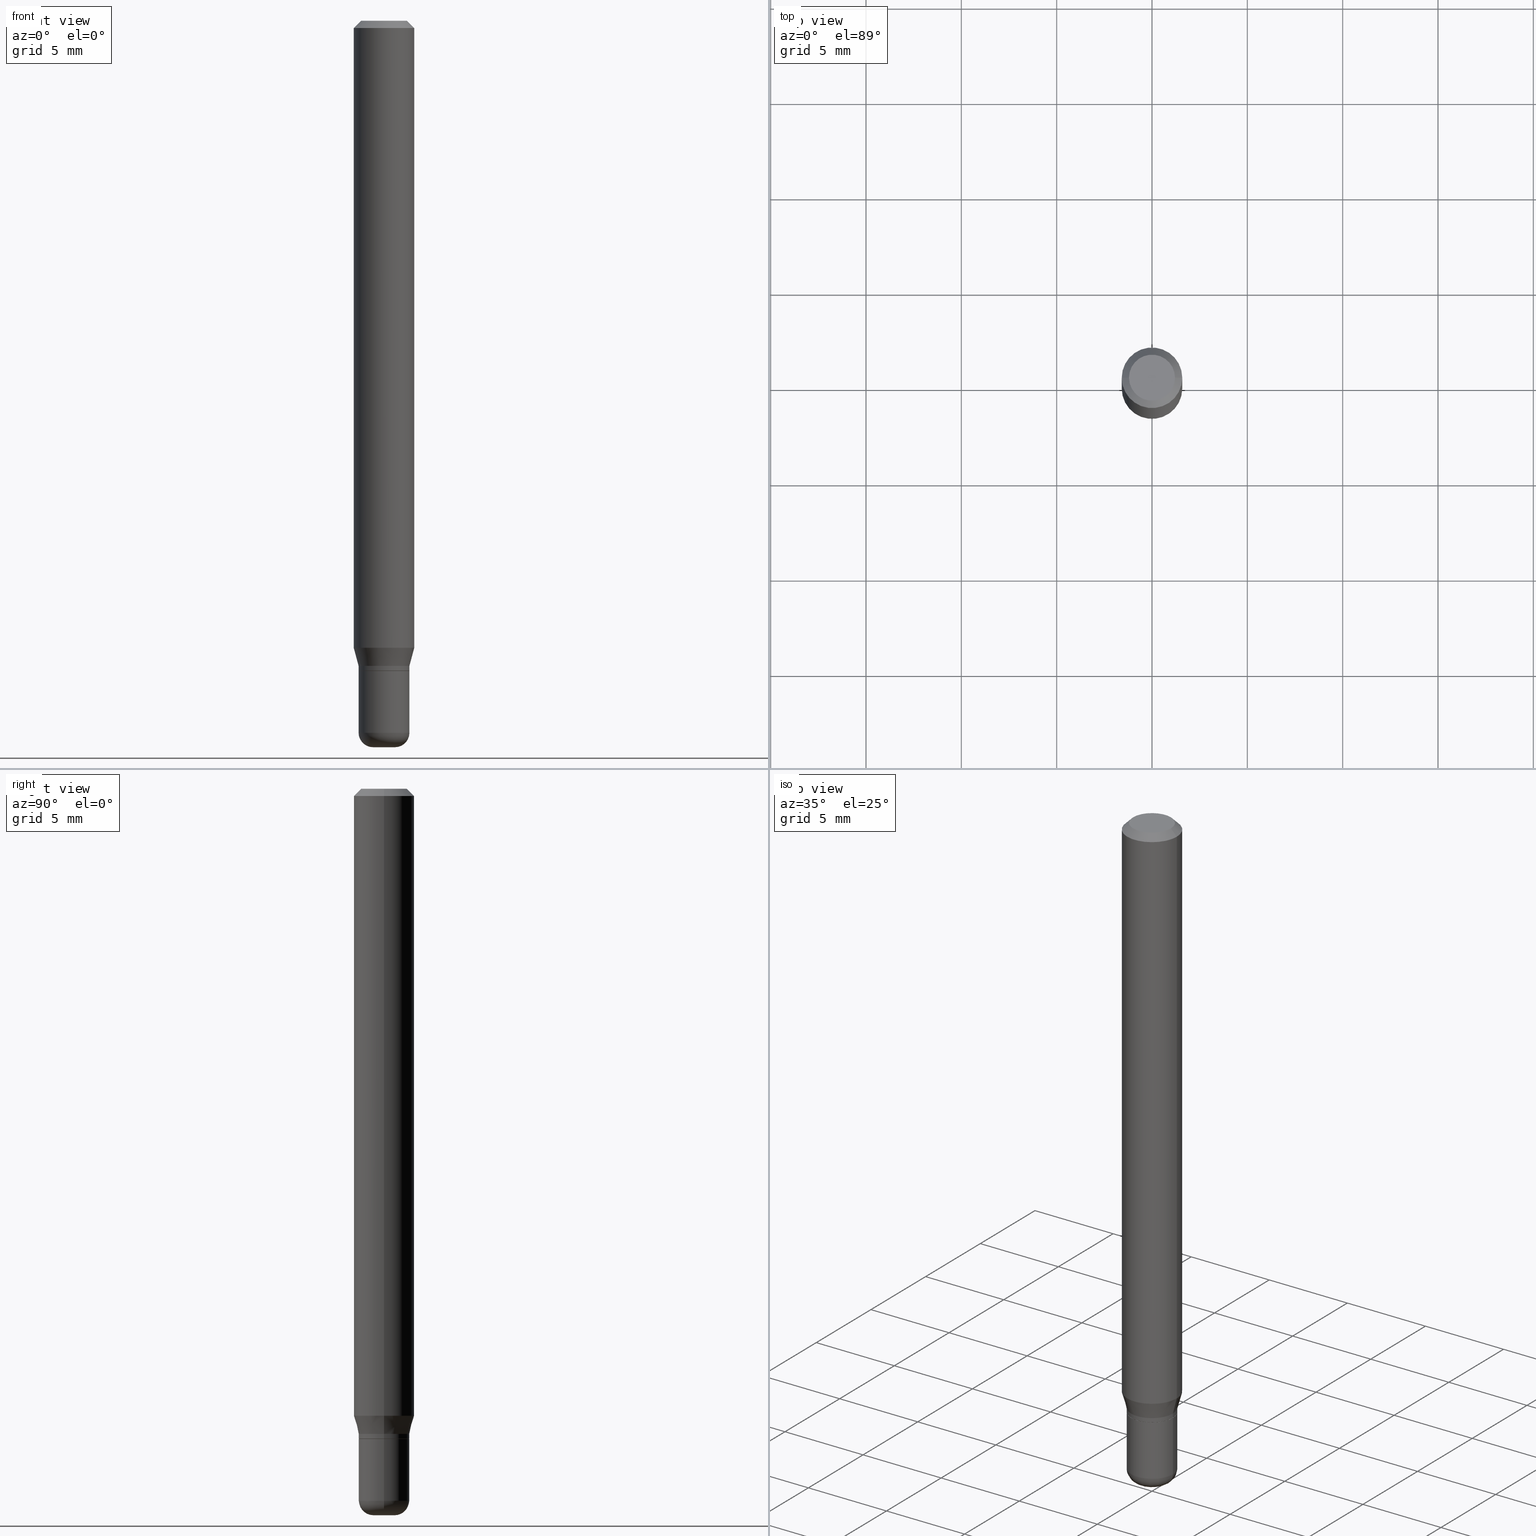
[diagram: canonical four-view strip — front | top / right | iso, engineering-drawing reading convention]
A machine part, canonical four-view strip (front | top / right | iso — engineering-drawing reading convention). The complete STEP part file that produces these views, byte-faithful:
ISO-10303-21;
HEADER;
FILE_DESCRIPTION (( 'STEP AP203' ),
    '1' );
FILE_NAME ('09094.STEP',
    '2024-02-29T22:03:59',
    ( '' ),
    ( '' ),
    'SwSTEP 2.0',
    'SolidWorks 2023',
    '' );
FILE_SCHEMA (( 'CONFIG_CONTROL_DESIGN' ));
ENDSEC;

DATA;
#1 = APPROVAL_STATUS ( 'not_yet_approved' ) ;
#2 = CONICAL_SURFACE ( 'NONE', #176, 0.05250000000000007438, 0.2617993877991501850 ) ;
#3 = ORIENTED_EDGE ( 'NONE', *, *, #203, .F. ) ;
#4 = EDGE_CURVE ( 'NONE', #404, #74, #418, .T. ) ;
#5 = DIRECTION ( 'NONE',  ( 7.105427357601001859E-15, 1.000000000000000000, -3.491481338843145583E-15 ) ) ;
#6 = PLANE ( 'NONE',  #167 ) ;
#7 = MECHANICAL_CONTEXT ( 'NONE', #196, 'mechanical' ) ;
#8 = DIRECTION ( 'NONE',  ( 1.000000000000000000, -6.982962677686262766E-15, 0.000000000000000000 ) ) ;
#9 = CIRCLE ( 'NONE', #438, 0.02250000000000000264 ) ;
#10 = PRODUCT_DEFINITION_FORMATION_WITH_SPECIFIED_SOURCE ( 'ANY', '', #503, .NOT_KNOWN. ) ;
#11 = CARTESIAN_POINT ( 'NONE',  ( -0.04750000000000000749, 3.578768372314221353E-16, 2.731847993664239060E-16 ) ) ;
#12 = DIRECTION ( 'NONE',  ( -2.445468806185136597E-29, 3.491481338843145583E-15, 1.000000000000000000 ) ) ;
#13 = DIRECTION ( 'NONE',  ( 1.000000000000000000, -6.982962677686258033E-15, 0.000000000000000000 ) ) ;
#14 = APPROVAL_STATUS ( 'not_yet_approved' ) ;
#15 = DIRECTION ( 'NONE',  ( 1.000000000000000000, -6.982962677686269866E-15, 0.000000000000000000 ) ) ;
#16 = EDGE_LOOP ( 'NONE', ( #268, #474 ) ) ;
#17 = DATE_AND_TIME ( #216, #194 ) ;
#18 = EDGE_CURVE ( 'NONE', #55, #305, #192, .T. ) ;
#19 = VECTOR ( 'NONE', #291, 39.37007874015748143 ) ;
#20 = AXIS2_PLACEMENT_3D ( 'NONE', #317, #233, #67 ) ;
#21 = ADVANCED_FACE ( 'NONE', ( #366 ), #115, .T. ) ;
#22 = ORIENTED_EDGE ( 'NONE', *, *, #4, .F. ) ;
#23 = COORDINATED_UNIVERSAL_TIME_OFFSET ( 5, 0, .BEHIND. ) ;
#24 = ORIENTED_EDGE ( 'NONE', *, *, #97, .T. ) ;
#25 = LINE ( 'NONE', #345, #211 ) ;
#26 = EDGE_CURVE ( 'NONE', #305, #404, #515, .T. ) ;
#27 = VERTEX_POINT ( 'NONE', #316 ) ;
#28 = CARTESIAN_POINT ( 'NONE',  ( 0.000000000000000000, 0.000000000000000000, 0.000000000000000000 ) ) ;
#29 = ORIENTED_EDGE ( 'NONE', *, *, #219, .T. ) ;
#30 = DIRECTION ( 'NONE',  ( 1.000000000000000000, -6.982962677686266711E-15, 4.876176775795936353E-29 ) ) ;
#31 = ORIENTED_EDGE ( 'NONE', *, *, #367, .F. ) ;
#32 = CARTESIAN_POINT ( 'NONE',  ( 0.05249999999999999806, -5.052173497306030121E-15, -1.342000000000000082 ) ) ;
#33 = ORIENTED_EDGE ( 'NONE', *, *, #26, .T. ) ;
#34 = CONICAL_SURFACE ( 'NONE', #99, 0.05200000000000005312, 0.7853981633972775267 ) ;
#35 = DIRECTION ( 'NONE',  ( -2.445468806185136597E-29, 3.491481338843145583E-15, 1.000000000000000000 ) ) ;
#36 = CC_DESIGN_PERSON_AND_ORGANIZATION_ASSIGNMENT ( #102, #334, ( #10 ) ) ;
#37 = DIRECTION ( 'NONE',  ( -2.445468806185136597E-29, 3.491481338843145583E-15, 1.000000000000000000 ) ) ;
#38 = CARTESIAN_POINT ( 'NONE',  ( -0.05250000000000005357, -4.310787279784026134E-15, -1.341499999999999915 ) ) ;
#39 = LINE ( 'NONE', #360, #221 ) ;
#40 = FACE_OUTER_BOUND ( 'NONE', #424, .T. ) ;
#41 = PRODUCT_DEFINITION_SHAPE ( 'NONE', 'NONE',  #91 ) ;
#42 = FACE_OUTER_BOUND ( 'NONE', #139, .T. ) ;
#43 = AXIS2_PLACEMENT_3D ( 'NONE', #425, #62, #398 ) ;
#44 = CARTESIAN_POINT ( 'NONE',  ( -0.02249999999999999570, -4.972605452553402518E-15, -1.470000000000000195 ) ) ;
#45 = VECTOR ( 'NONE', #313, 39.37007874015748143 ) ;
#46 = DIRECTION ( 'NONE',  ( 2.438088387897960049E-29, -3.491481338843145188E-15, -1.000000000000000000 ) ) ;
#47 = PLANE ( 'NONE',  #63 ) ;
#48 = CARTESIAN_POINT ( 'NONE',  ( -0.05249999999999999806, -4.535987826139409561E-15, -1.342000000000000082 ) ) ;
#49 = EDGE_CURVE ( 'NONE', #143, #193, #9, .T. ) ;
#50 = CARTESIAN_POINT ( 'NONE',  ( 3.668203209277632395E-31, -5.237222008264614861E-17, -0.01499999999999970281 ) ) ;
#51 =( NAMED_UNIT ( * ) PLANE_ANGLE_UNIT ( ) SI_UNIT ( $, .RADIAN. ) );
#52 = AXIS2_PLACEMENT_3D ( 'NONE', #154, #469, #395 ) ;
#53 = SECURITY_CLASSIFICATION ( '', '', #378 ) ;
#54 = CARTESIAN_POINT ( 'NONE',  ( -0.05250000000000005357, 3.730349362740529782E-16, -2.582440922383828464E-30 ) ) ;
#55 = VERTEX_POINT ( 'NONE', #157 ) ;
#56 = PERSON_AND_ORGANIZATION ( #141, #429 ) ;
#57 = DIRECTION ( 'NONE',  ( -2.445468806185136597E-29, 3.491481338843145583E-15, 1.000000000000000000 ) ) ;
#58 = VECTOR ( 'NONE', #410, 39.37007874015748143 ) ;
#59 = LOCAL_TIME ( 17, 3, 59.00000000000000000, #494 ) ;
#60 = EDGE_LOOP ( 'NONE', ( #24, #387, #340, #397 ) ) ;
#61 = ORIENTED_EDGE ( 'NONE', *, *, #18, .F. ) ;
#62 = DIRECTION ( 'NONE',  ( -2.438088387897960049E-29, 3.491481338843145188E-15, 1.000000000000000000 ) ) ;
#63 = AXIS2_PLACEMENT_3D ( 'NONE', #249, #483, #117 ) ;
#64 = EDGE_LOOP ( 'NONE', ( #95, #493, #234, #133 ) ) ;
#65 = AXIS2_PLACEMENT_3D ( 'NONE', #449, #485, #436 ) ;
#66 = LOCAL_TIME ( 17, 3, 59.00000000000000000, #98 ) ;
#67 = DIRECTION ( 'NONE',  ( 1.000000000000000000, -6.982962677686272233E-15, 4.883557194083115143E-29 ) ) ;
#68 = ORIENTED_EDGE ( 'NONE', *, *, #491, .F. ) ;
#69 = ADVANCED_FACE ( 'NONE', ( #478 ), #47, .F. ) ;
#70 = CARTESIAN_POINT ( 'NONE',  ( -0.05200000000000005312, -4.316085734132249325E-15, -1.342000000000000082 ) ) ;
#71 = ORIENTED_EDGE ( 'NONE', *, *, #26, .F. ) ;
#72 = CC_DESIGN_PERSON_AND_ORGANIZATION_ASSIGNMENT ( #164, #292, ( #503 ) ) ;
#73 = LINE ( 'NONE', #195, #202 ) ;
#74 = VERTEX_POINT ( 'NONE', #242 ) ;
#75 = AXIS2_PLACEMENT_3D ( 'NONE', #88, #138, #15 ) ;
#76 = AXIS2_PLACEMENT_3D ( 'NONE', #511, #152, #475 ) ;
#77 = DIRECTION ( 'NONE',  ( -2.445468806185136877E-29, 3.491481338843145188E-15, 1.000000000000000000 ) ) ;
#78 = DIRECTION ( 'NONE',  ( -2.445468806185136597E-29, 3.491481338843145583E-15, 1.000000000000000000 ) ) ;
#79 = DIRECTION ( 'NONE',  ( 1.000000000000000000, -6.982962677686262766E-15, 0.000000000000000000 ) ) ;
#80 = CARTESIAN_POINT ( 'NONE',  ( -0.06250000000000000000, 4.440892098500626162E-16, -3.074334431409316114E-30 ) ) ;
#81 = DIRECTION ( 'NONE',  ( -2.445468806185136597E-29, 3.491481338843145583E-15, 1.000000000000000000 ) ) ;
#82 = CARTESIAN_POINT ( 'NONE',  ( 3.668203209277632395E-31, -5.237222008264614861E-17, -0.01499999999999970281 ) ) ;
#83 = AXIS2_PLACEMENT_3D ( 'NONE', #82, #37, #208 ) ;
#84 = CIRCLE ( 'NONE', #247, 0.05250000000000005357 ) ;
#85 = CARTESIAN_POINT ( 'NONE',  ( 3.666055405785617499E-16, 0.05249999999999530736, -1.342000000000000304 ) ) ;
#86 = EDGE_CURVE ( 'NONE', #193, #348, #327, .T. ) ;
#87 = CARTESIAN_POINT ( 'NONE',  ( 3.281819137900453057E-29, -4.685567956727500961E-15, -1.342000000000000082 ) ) ;
#88 = CARTESIAN_POINT ( 'NONE',  ( 3.281819137900453057E-29, -4.685567956727500961E-15, -1.342000000000000082 ) ) ;
#89 = EDGE_CURVE ( 'NONE', #187, #230, #108, .T. ) ;
#90 = CYLINDRICAL_SURFACE ( 'NONE', #137, 0.06250000000000000000 ) ;
#91 = PRODUCT_DEFINITION ( 'UNKNOWN', '', #10, #250 ) ;
#92 = CARTESIAN_POINT ( 'NONE',  ( 3.594839145092150820E-29, -5.132477568099424807E-15, -1.470000000000000195 ) ) ;
#93 = VECTOR ( 'NONE', #77, 39.37007874015748143 ) ;
#94 = FACE_OUTER_BOUND ( 'NONE', #407, .T. ) ;
#95 = ORIENTED_EDGE ( 'NONE', *, *, #386, .F. ) ;
#96 = CARTESIAN_POINT ( 'NONE',  ( 0.02250000000000000264, -5.394338668512660598E-15, -1.500000000000000444 ) ) ;
#97 = EDGE_CURVE ( 'NONE', #263, #308, #228, .T. ) ;
#98 = COORDINATED_UNIVERSAL_TIME_OFFSET ( 5, 0, .BEHIND. ) ;
#99 = AXIS2_PLACEMENT_3D ( 'NONE', #147, #307, #315 ) ;
#100 = CALENDAR_DATE ( 2024, 29, 2 ) ;
#101 = ORIENTED_EDGE ( 'NONE', *, *, #311, .T. ) ;
#102 = PERSON_AND_ORGANIZATION ( #141, #429 ) ;
#103 = EDGE_CURVE ( 'NONE', #263, #468, #39, .T. ) ;
#104 = CARTESIAN_POINT ( 'NONE',  ( 0.05250000000000005357, -5.050427756636608617E-15, -1.341499999999999915 ) ) ;
#105 = ORIENTED_EDGE ( 'NONE', *, *, #399, .T. ) ;
#106 = LINE ( 'NONE', #435, #93 ) ;
#107 = ADVANCED_FACE ( 'NONE', ( #42 ), #6, .F. ) ;
#108 = CIRCLE ( 'NONE', #495, 0.05200000000000005312 ) ;
#109 = ORIENTED_EDGE ( 'NONE', *, *, #299, .F. ) ;
#110 = DIMENSIONAL_EXPONENTS ( 1.000000000000000000, 0.000000000000000000, 0.000000000000000000, 0.000000000000000000, 0.000000000000000000, 0.000000000000000000, 0.000000000000000000 ) ;
#111 = CARTESIAN_POINT ( 'NONE',  ( 0.05250000000000005357, -3.666055405785293573E-16, 2.559992807292869164E-30 ) ) ;
#112 = ADVANCED_FACE ( 'NONE', ( #200 ), #343, .T. ) ;
#113 = ORIENTED_EDGE ( 'NONE', *, *, #354, .F. ) ;
#114 = FACE_OUTER_BOUND ( 'NONE', #151, .T. ) ;
#115 = CYLINDRICAL_SURFACE ( 'NONE', #65, 0.05250000000000006051 ) ;
#116 = CARTESIAN_POINT ( 'NONE',  ( 3.257364449838602633E-29, -4.650653143339071678E-15, -1.332000000000000517 ) ) ;
#117 = DIRECTION ( 'NONE',  ( -1.000000000000000000, 6.982962677686265922E-15, -4.876176775795935793E-29 ) ) ;
#118 = AXIS2_PLACEMENT_3D ( 'NONE', #218, #227, #415 ) ;
#119 = EDGE_CURVE ( 'NONE', #468, #27, #481, .T. ) ;
#120 = ORIENTED_EDGE ( 'NONE', *, *, #261, .T. ) ;
#121 = APPROVAL_DATE_TIME ( #484, #431 ) ;
#122 = ADVANCED_FACE ( 'NONE', ( #174 ), #457, .F. ) ;
#123 = CARTESIAN_POINT ( 'NONE',  ( 3.668203209277706016E-29, -5.237222008264719754E-15, -1.500000000000000444 ) ) ;
#124 = DIRECTION ( 'NONE',  ( -2.445468806185136877E-29, 3.491481338843145188E-15, 1.000000000000000000 ) ) ;
#125 = VECTOR ( 'NONE', #437, 39.37007874015748143 ) ;
#126 = DIRECTION ( 'NONE',  ( 1.000000000000000000, -6.982962677686268288E-15, 0.000000000000000000 ) ) ;
#127 = TOROIDAL_SURFACE ( 'NONE', #20, 0.02249999999999999570, 0.03000000000000011685 ) ;
#128 = DIRECTION ( 'NONE',  ( -2.445468806185136597E-29, 3.491481338843145583E-15, 1.000000000000000000 ) ) ;
#129 = DIRECTION ( 'NONE',  ( 1.000000000000000000, -6.982962677686260400E-15, 0.000000000000000000 ) ) ;
#130 = DIRECTION ( 'NONE',  ( 2.445468806185136597E-29, -3.491481338843145583E-15, -1.000000000000000000 ) ) ;
#131 = LENGTH_MEASURE_WITH_UNIT ( LENGTH_MEASURE( 0.02539999999999999897 ), #403 );
#132 = DIRECTION ( 'NONE',  ( -2.445468806185136597E-29, 3.491481338843145583E-15, 1.000000000000000000 ) ) ;
#133 = ORIENTED_EDGE ( 'NONE', *, *, #456, .F. ) ;
#134 = APPROVAL_ROLE ( '' ) ;
#135 = CONICAL_SURFACE ( 'NONE', #270, 0.06250000000000000000, 0.7853981633974488341 ) ;
#136 = CC_DESIGN_APPROVAL ( #408, ( #53 ) ) ;
#137 = AXIS2_PLACEMENT_3D ( 'NONE', #288, #81, #486 ) ;
#138 = DIRECTION ( 'NONE',  ( -2.445468806185136597E-29, 3.491481338843145583E-15, 1.000000000000000000 ) ) ;
#139 = EDGE_LOOP ( 'NONE', ( #146, #356 ) ) ;
#140 = APPLICATION_CONTEXT ( 'configuration controlled 3d designs of mechanical parts and assemblies' ) ;
#141 = PERSON ( 'UNSPECIFIED', 'UNSPECIFIED', 'UNSPECIFIED', ('UNSPECIFIED'), ('UNSPECIFIED'), ('UNSPECIFIED') ) ;
#142 = AXIS2_PLACEMENT_3D ( 'NONE', #518, #277, #402 ) ;
#143 = VERTEX_POINT ( 'NONE', #335 ) ;
#144 = EDGE_CURVE ( 'NONE', #363, #465, #454, .T. ) ;
#145 = CARTESIAN_POINT ( 'NONE',  ( 3.594839145092150820E-29, -5.132477568099424807E-15, -1.470000000000000195 ) ) ;
#146 = ORIENTED_EDGE ( 'NONE', *, *, #491, .T. ) ;
#147 = CARTESIAN_POINT ( 'NONE',  ( 3.281819137900453057E-29, -4.685567956727500961E-15, -1.342000000000000082 ) ) ;
#148 = ORIENTED_EDGE ( 'NONE', *, *, #261, .F. ) ;
#149 = CARTESIAN_POINT ( 'NONE',  ( -0.06250000000000000000, -4.076260075986598044E-15, -1.294679491924312087 ) ) ;
#150 = CC_DESIGN_PERSON_AND_ORGANIZATION_ASSIGNMENT ( #220, #423, ( #10 ) ) ;
#151 = EDGE_LOOP ( 'NONE', ( #181, #101, #166, #476 ) ) ;
#152 = DIRECTION ( 'NONE',  ( -2.445468806185136597E-29, 3.491481338843145583E-15, 1.000000000000000000 ) ) ;
#153 = ORIENTED_EDGE ( 'NONE', *, *, #165, .F. ) ;
#154 = CARTESIAN_POINT ( 'NONE',  ( 3.257364449838602633E-29, -4.650653143339071678E-15, -1.332000000000000517 ) ) ;
#155 = DIRECTION ( 'NONE',  ( -2.445468806185136877E-29, 3.491481338843145188E-15, 1.000000000000000000 ) ) ;
#156 = CARTESIAN_POINT ( 'NONE',  ( 3.594839145092150820E-29, -5.132477568099424807E-15, -1.470000000000000195 ) ) ;
#157 = CARTESIAN_POINT ( 'NONE',  ( 0.06250000000000000000, -4.956784453192051541E-15, -1.294679491924312087 ) ) ;
#158 = AXIS2_PLACEMENT_3D ( 'NONE', #92, #254, #412 ) ;
#159 = COORDINATED_UNIVERSAL_TIME_OFFSET ( 5, 0, .BEHIND. ) ;
#160 = DIRECTION ( 'NONE',  ( -2.445468806185136597E-29, 3.491481338843145583E-15, 1.000000000000000000 ) ) ;
#161 = DIRECTION ( 'NONE',  ( 2.445468806185136597E-29, -3.491481338843145583E-15, -1.000000000000000000 ) ) ;
#162 = ADVANCED_FACE ( 'NONE', ( #257 ), #388, .T. ) ;
#163 = DIRECTION ( 'NONE',  ( -2.445468806185136597E-29, 3.491481338843145583E-15, 1.000000000000000000 ) ) ;
#164 = PERSON_AND_ORGANIZATION ( #141, #429 ) ;
#165 = EDGE_CURVE ( 'NONE', #190, #404, #304, .T. ) ;
#166 = ORIENTED_EDGE ( 'NONE', *, *, #354, .T. ) ;
#167 = AXIS2_PLACEMENT_3D ( 'NONE', #85, #46, #205 ) ;
#168 = CARTESIAN_POINT ( 'NONE',  ( 3.668203209277632395E-31, -5.237222008264614861E-17, -0.01499999999999970281 ) ) ;
#169 = CARTESIAN_POINT ( 'NONE',  ( 3.668203209277632395E-31, -5.237222008264614861E-17, -0.01499999999999970281 ) ) ;
#170 =( NAMED_UNIT ( * ) SI_UNIT ( $, .STERADIAN. ) SOLID_ANGLE_UNIT ( ) );
#171 = CARTESIAN_POINT ( 'NONE',  ( 0.05200000000000005312, -5.048682015967187903E-15, -1.342000000000000082 ) ) ;
#172 = ORIENTED_EDGE ( 'NONE', *, *, #260, .F. ) ;
#173 = DATE_AND_TIME ( #100, #66 ) ;
#174 = FACE_OUTER_BOUND ( 'NONE', #16, .T. ) ;
#175 = CIRCLE ( 'NONE', #353, 0.04750000000000000749 ) ;
#176 = AXIS2_PLACEMENT_3D ( 'NONE', #116, #473, #350 ) ;
#177 = EDGE_CURVE ( 'NONE', #27, #305, #329, .T. ) ;
#178 = ORIENTED_EDGE ( 'NONE', *, *, #119, .T. ) ;
#179 = APPROVAL_DATE_TIME ( #17, #408 ) ;
#180 = EDGE_CURVE ( 'NONE', #230, #187, #396, .T. ) ;
#181 = ORIENTED_EDGE ( 'NONE', *, *, #177, .F. ) ;
#182 = CARTESIAN_POINT ( 'NONE',  ( 0.06250000000000000000, -4.811533449433669144E-16, -0.01499999999999970281 ) ) ;
#183 = VECTOR ( 'NONE', #155, 39.37007874015748143 ) ;
#184 = AXIS2_PLACEMENT_3D ( 'NONE', #87, #455, #126 ) ;
#185 = ORIENTED_EDGE ( 'NONE', *, *, #349, .F. ) ;
#186 = DIRECTION ( 'NONE',  ( 1.000000000000000000, -6.982962677686266711E-15, 4.852736867747365086E-29 ) ) ;
#187 = VERTEX_POINT ( 'NONE', #171 ) ;
#188 = ADVANCED_FACE ( 'NONE', ( #496 ), #135, .T. ) ;
#189 = FACE_OUTER_BOUND ( 'NONE', #60, .T. ) ;
#190 = VERTEX_POINT ( 'NONE', #11 ) ;
#191 = DIRECTION ( 'NONE',  ( -2.445468806185136597E-29, 3.491481338843145583E-15, 1.000000000000000000 ) ) ;
#192 = CIRCLE ( 'NONE', #379, 0.06250000000000000000 ) ;
#193 = VERTEX_POINT ( 'NONE', #96 ) ;
#194 = LOCAL_TIME ( 17, 3, 59.00000000000000000, #23 ) ;
#195 = CARTESIAN_POINT ( 'NONE',  ( 0.05200000000000005312, -5.048682015967187903E-15, -1.342000000000000082 ) ) ;
#196 = APPLICATION_CONTEXT ( 'configuration controlled 3d designs of mechanical parts and assemblies' ) ;
#197 = DIRECTION ( 'NONE',  ( -2.445468806185136597E-29, 3.491481338843145583E-15, 1.000000000000000000 ) ) ;
#198 = CARTESIAN_POINT ( 'NONE',  ( 0.05250000000000010908, -5.499083108677954756E-15, -1.470000000000000195 ) ) ;
#199 = CARTESIAN_POINT ( 'NONE',  ( 3.280596403497360256E-29, -4.683822216058079457E-15, -1.341499999999999915 ) ) ;
#200 = FACE_OUTER_BOUND ( 'NONE', #64, .T. ) ;
#201 = CIRCLE ( 'NONE', #428, 0.06250000000000000000 ) ;
#202 = VECTOR ( 'NONE', #513, 39.37007874015748143 ) ;
#203 = EDGE_CURVE ( 'NONE', #265, #190, #175, .T. ) ;
#204 = DIRECTION ( 'NONE',  ( -1.000000000000000000, 6.982962677686266711E-15, 0.000000000000000000 ) ) ;
#205 = DIRECTION ( 'NONE',  ( -1.000000000000000000, 6.982962677686265922E-15, -4.876176775795935793E-29 ) ) ;
#206 = EDGE_CURVE ( 'NONE', #265, #74, #490, .T. ) ;
#207 = CARTESIAN_POINT ( 'NONE',  ( 3.280596403497360256E-29, -4.683822216058079457E-15, -1.341499999999999915 ) ) ;
#208 = DIRECTION ( 'NONE',  ( 1.000000000000000000, -6.982962677686266711E-15, 0.000000000000000000 ) ) ;
#209 =( CONVERSION_BASED_UNIT ( 'INCH', #131 ) LENGTH_UNIT ( ) NAMED_UNIT ( #110 ) );
#210 = DIRECTION ( 'NONE',  ( -1.000000000000000000, 6.982962677686266711E-15, 0.000000000000000000 ) ) ;
#211 = VECTOR ( 'NONE', #214, 39.37007874015748143 ) ;
#212 = FACE_OUTER_BOUND ( 'NONE', #512, .T. ) ;
#213 = CIRCLE ( 'NONE', #355, 0.06250000000000000000 ) ;
#214 = DIRECTION ( 'NONE',  ( -2.445468806185136877E-29, 3.491481338843145188E-15, 1.000000000000000000 ) ) ;
#215 = ADVANCED_FACE ( 'NONE', ( #492 ), #413, .T. ) ;
#216 = CALENDAR_DATE ( 2024, 29, 2 ) ;
#217 = MANIFOLD_SOLID_BREP ( 'Body-Move/Copy2[2]', #362 ) ;
#218 = CARTESIAN_POINT ( 'NONE',  ( 3.281819137900453057E-29, -4.685567956727500961E-15, -1.342000000000000082 ) ) ;
#219 = EDGE_CURVE ( 'NONE', #363, #348, #336, .T. ) ;
#220 = PERSON_AND_ORGANIZATION ( #141, #429 ) ;
#221 = VECTOR ( 'NONE', #124, 39.37007874015748143 ) ;
#222 = AXIS2_PLACEMENT_3D ( 'NONE', #411, #446, #248 ) ;
#223 = APPROVAL_ROLE ( '' ) ;
#224 = ORIENTED_EDGE ( 'NONE', *, *, #86, .T. ) ;
#225 = CARTESIAN_POINT ( 'NONE',  ( -0.05250000000000007438, -4.277618207065018355E-15, -1.332000000000000517 ) ) ;
#226 = ORIENTED_EDGE ( 'NONE', *, *, #97, .F. ) ;
#227 = DIRECTION ( 'NONE',  ( -2.438088387897960049E-29, 3.491481338843145188E-15, 1.000000000000000000 ) ) ;
#228 = CIRCLE ( 'NONE', #447, 0.05250000000000005357 ) ;
#229 = VECTOR ( 'NONE', #430, 39.37007874015748143 ) ;
#230 = VERTEX_POINT ( 'NONE', #385 ) ;
#231 = CARTESIAN_POINT ( 'NONE',  ( 0.000000000000000000, 0.000000000000000000, 0.000000000000000000 ) ) ;
#232 = ORIENTED_EDGE ( 'NONE', *, *, #206, .F. ) ;
#233 = DIRECTION ( 'NONE',  ( -2.445468806185136597E-29, 3.491481338843145583E-15, 1.000000000000000000 ) ) ;
#234 = ORIENTED_EDGE ( 'NONE', *, *, #331, .T. ) ;
#235 = EDGE_CURVE ( 'NONE', #308, #27, #25, .T. ) ;
#236 = CARTESIAN_POINT ( 'NONE',  ( -0.05250000000000009520, -4.535987826139408772E-15, -1.470000000000000195 ) ) ;
#237 = EDGE_LOOP ( 'NONE', ( #434, #383, #499, #432 ) ) ;
#238 = APPROVAL_PERSON_ORGANIZATION ( #255, #431, #414 ) ;
#239 = DIRECTION ( 'NONE',  ( -2.445468806185136597E-29, 3.491481338843145583E-15, 1.000000000000000000 ) ) ;
#240 = DIRECTION ( 'NONE',  ( 1.000000000000000000, -6.982962677686269866E-15, 0.000000000000000000 ) ) ;
#241 = CARTESIAN_POINT ( 'NONE',  ( -0.06250000000000000000, -1.842271543109590267E-15, -0.01499999999999970281 ) ) ;
#242 = CARTESIAN_POINT ( 'NONE',  ( 0.06250000000000000000, -4.888073874380378612E-16, -0.01499999999999970281 ) ) ;
#243 = PERSON_AND_ORGANIZATION_ROLE ( 'creator' ) ;
#244 = CARTESIAN_POINT ( 'NONE',  ( 3.166098311508526589E-29, -4.520349285836659871E-15, -1.294679491924312087 ) ) ;
#245 = CIRCLE ( 'NONE', #471, 0.04750000000000000749 ) ;
#246 = APPROVAL ( #14, 'UNSPECIFIED' ) ;
#247 = AXIS2_PLACEMENT_3D ( 'NONE', #207, #328, #129 ) ;
#248 = DIRECTION ( 'NONE',  ( 1.000000000000000000, 0.000000000000000000, 0.000000000000000000 ) ) ;
#249 = CARTESIAN_POINT ( 'NONE',  ( 3.316907271900976589E-16, 0.04750000000000000749, -2.925296391183627249E-17 ) ) ;
#250 = DESIGN_CONTEXT ( 'detailed design', #140, 'design' ) ;
#251 = CARTESIAN_POINT ( 'NONE',  ( 0.05250000000000007438, -5.017258683917600838E-15, -1.332000000000000517 ) ) ;
#252 = DIRECTION ( 'NONE',  ( -2.445468806185136597E-29, 3.491481338843145583E-15, 1.000000000000000000 ) ) ;
#253 = APPLICATION_PROTOCOL_DEFINITION ( 'international standard', 'config_control_design', 1994, #140 ) ;
#254 = DIRECTION ( 'NONE',  ( -2.445468806185136597E-29, 3.491481338843145583E-15, 1.000000000000000000 ) ) ;
#255 = PERSON_AND_ORGANIZATION ( #141, #429 ) ;
#256 = APPROVAL_PERSON_ORGANIZATION ( #56, #408, #134 ) ;
#257 = FACE_OUTER_BOUND ( 'NONE', #325, .T. ) ;
#258 = ORIENTED_EDGE ( 'NONE', *, *, #165, .T. ) ;
#259 = DIRECTION ( 'NONE',  ( -2.445468806185136597E-29, 3.491481338843145583E-15, 1.000000000000000000 ) ) ;
#260 = EDGE_CURVE ( 'NONE', #190, #265, #245, .T. ) ;
#261 = EDGE_CURVE ( 'NONE', #74, #404, #201, .T. ) ;
#262 = AXIS2_PLACEMENT_3D ( 'NONE', #269, #276, #480 ) ;
#263 = VERTEX_POINT ( 'NONE', #104 ) ;
#264 = CALENDAR_DATE ( 2024, 29, 2 ) ;
#265 = VERTEX_POINT ( 'NONE', #293 ) ;
#266 = APPROVAL_STATUS ( 'not_yet_approved' ) ;
#267 = PLANE ( 'NONE',  #43 ) ;
#268 = ORIENTED_EDGE ( 'NONE', *, *, #89, .F. ) ;
#269 = CARTESIAN_POINT ( 'NONE',  ( 3.257364449838602633E-29, -4.650653143339071678E-15, -1.332000000000000517 ) ) ;
#270 = AXIS2_PLACEMENT_3D ( 'NONE', #50, #130, #210 ) ;
#271 = CIRCLE ( 'NONE', #364, 0.05249999999999999806 ) ;
#272 = ORIENTED_EDGE ( 'NONE', *, *, #49, .F. ) ;
#273 = LINE ( 'NONE', #390, #45 ) ;
#274 = ORIENTED_EDGE ( 'NONE', *, *, #103, .T. ) ;
#275 = ADVANCED_FACE ( 'NONE', ( #94 ), #267, .F. ) ;
#276 = DIRECTION ( 'NONE',  ( -2.445468806185136597E-29, 3.491481338843145583E-15, 1.000000000000000000 ) ) ;
#277 = DIRECTION ( 'NONE',  ( -6.982962677686266711E-15, -1.000000000000000000, 3.491481338843145583E-15 ) ) ;
#278 = DIRECTION ( 'NONE',  ( 1.000000000000000000, -6.982962677686267499E-15, 0.000000000000000000 ) ) ;
#279 = CIRCLE ( 'NONE', #52, 0.05250000000000007438 ) ;
#280 = CARTESIAN_POINT ( 'NONE',  ( 3.281819137900453057E-29, -4.685567956727500961E-15, -1.342000000000000082 ) ) ;
#281 = AXIS2_PLACEMENT_3D ( 'NONE', #409, #12, #322 ) ;
#282 = CARTESIAN_POINT ( 'NONE',  ( 3.166098311508526589E-29, -4.520349285836659871E-15, -1.294679491924312087 ) ) ;
#283 = ORIENTED_EDGE ( 'NONE', *, *, #203, .T. ) ;
#284 = PERSON_AND_ORGANIZATION ( #141, #429 ) ;
#285 = EDGE_LOOP ( 'NONE', ( #444, #283 ) ) ;
#286 = ORIENTED_EDGE ( 'NONE', *, *, #456, .T. ) ;
#287 = CC_DESIGN_APPROVAL ( #246, ( #10 ) ) ;
#288 = CARTESIAN_POINT ( 'NONE',  ( 0.000000000000000000, 0.000000000000000000, 0.000000000000000000 ) ) ;
#289 = DIRECTION ( 'NONE',  ( -2.445468806185136877E-29, 3.491481338843145188E-15, 1.000000000000000000 ) ) ;
#290 = ADVANCED_FACE ( 'NONE', ( #114 ), #458, .T. ) ;
#291 = DIRECTION ( 'NONE',  ( 0.7071067811865479058, -7.319954787623257623E-15, -0.7071067811865471286 ) ) ;
#292 = PERSON_AND_ORGANIZATION_ROLE ( 'design_owner' ) ;
#293 = CARTESIAN_POINT ( 'NONE',  ( 0.04750000000000000749, -4.035134999187568762E-16, 2.731847993664288856E-16 ) ) ;
#294 = AXIS2_PLACEMENT_3D ( 'NONE', #374, #259, #13 ) ;
#295 = DATE_TIME_ROLE ( 'classification_date' ) ;
#296 =( GEOMETRIC_REPRESENTATION_CONTEXT ( 3 ) GLOBAL_UNCERTAINTY_ASSIGNED_CONTEXT ( ( #451 ) ) GLOBAL_UNIT_ASSIGNED_CONTEXT ( ( #209, #51, #170 ) ) REPRESENTATION_CONTEXT ( 'NONE', 'WORKASPACE' ) );
#297 = ADVANCED_FACE ( 'NONE', ( #507 ), #34, .T. ) ;
#298 = DIRECTION ( 'NONE',  ( 1.000000000000000000, -6.982962677686266711E-15, 4.876176775795935793E-29 ) ) ;
#299 = EDGE_CURVE ( 'NONE', #348, #391, #357, .T. ) ;
#300 = ORIENTED_EDGE ( 'NONE', *, *, #331, .F. ) ;
#301 = VECTOR ( 'NONE', #461, 39.37007874015748143 ) ;
#302 = ORIENTED_EDGE ( 'NONE', *, *, #18, .T. ) ;
#303 = PERSON_AND_ORGANIZATION_ROLE ( 'classification_officer' ) ;
#304 = LINE ( 'NONE', #376, #301 ) ;
#305 = VERTEX_POINT ( 'NONE', #149 ) ;
#306 = EDGE_CURVE ( 'NONE', #348, #363, #372, .T. ) ;
#307 = DIRECTION ( 'NONE',  ( -2.445468806185136597E-29, 3.491481338843145583E-15, 1.000000000000000000 ) ) ;
#308 = VERTEX_POINT ( 'NONE', #38 ) ;
#309 = FACE_OUTER_BOUND ( 'NONE', #504, .T. ) ;
#310 = AXIS2_PLACEMENT_3D ( 'NONE', #44, #5, #324 ) ;
#311 = EDGE_CURVE ( 'NONE', #27, #468, #279, .T. ) ;
#312 = ORIENTED_EDGE ( 'NONE', *, *, #330, .F. ) ;
#313 = DIRECTION ( 'NONE',  ( 0.2588190451025214611, 1.565188264969620982E-15, 0.9659258262890679791 ) ) ;
#314 = EDGE_LOOP ( 'NONE', ( #232, #172, #258, #377 ) ) ;
#315 = DIRECTION ( 'NONE',  ( 1.000000000000000000, -6.982962677686269866E-15, 0.000000000000000000 ) ) ;
#316 = CARTESIAN_POINT ( 'NONE',  ( -0.05250000000000007438, -4.176939141525808200E-15, -1.332000000000000517 ) ) ;
#317 = CARTESIAN_POINT ( 'NONE',  ( 3.594839145092150820E-29, -5.132477568099424807E-15, -1.470000000000000195 ) ) ;
#318 = CLOSED_SHELL ( 'NONE', ( #392, #450, #107, #405, #215, #275 ) ) ;
#319 = ORIENTED_EDGE ( 'NONE', *, *, #445, .F. ) ;
#320 = CALENDAR_DATE ( 2024, 29, 2 ) ;
#321 = CARTESIAN_POINT ( 'NONE',  ( 3.281819137900453057E-29, -4.685567956727500961E-15, -1.342000000000000082 ) ) ;
#322 = DIRECTION ( 'NONE',  ( 1.000000000000000000, -6.982962677686266711E-15, 4.876176775795936353E-29 ) ) ;
#323 = ORIENTED_EDGE ( 'NONE', *, *, #219, .F. ) ;
#324 = DIRECTION ( 'NONE',  ( -1.000000000000000000, 7.105427357600997126E-15, 0.000000000000000000 ) ) ;
#325 = EDGE_LOOP ( 'NONE', ( #71, #105, #389, #22 ) ) ;
#326 = ADVANCED_FACE ( 'NONE', ( #309 ), #2, .T. ) ;
#327 = CIRCLE ( 'NONE', #142, 0.03000000000000010991 ) ;
#328 = DIRECTION ( 'NONE',  ( -2.445468806185136597E-29, 3.491481338843145583E-15, 1.000000000000000000 ) ) ;
#329 = LINE ( 'NONE', #225, #58 ) ;
#330 = EDGE_CURVE ( 'NONE', #55, #74, #106, .T. ) ;
#331 = EDGE_CURVE ( 'NONE', #187, #263, #73, .T. ) ;
#332 = DIRECTION ( 'NONE',  ( 1.000000000000000000, -6.982962677686266711E-15, 4.852736867747365086E-29 ) ) ;
#333 = ORIENTED_EDGE ( 'NONE', *, *, #144, .T. ) ;
#334 = PERSON_AND_ORGANIZATION_ROLE ( 'design_supplier' ) ;
#335 = CARTESIAN_POINT ( 'NONE',  ( -0.02250000000000000264, -4.918396262272034080E-15, -1.500000000000000444 ) ) ;
#336 = CIRCLE ( 'NONE', #488, 0.05250000000000010908 ) ;
#337 = CIRCLE ( 'NONE', #448, 0.02250000000000000264 ) ;
#338 = DATE_AND_TIME ( #501, #59 ) ;
#339 = CC_DESIGN_PERSON_AND_ORGANIZATION_ASSIGNMENT ( #284, #243, ( #91 ) ) ;
#340 = ORIENTED_EDGE ( 'NONE', *, *, #119, .F. ) ;
#341 = ORIENTED_EDGE ( 'NONE', *, *, #311, .F. ) ;
#342 = PERSON_AND_ORGANIZATION ( #141, #429 ) ;
#343 = CONICAL_SURFACE ( 'NONE', #509, 0.05200000000000005312, 0.7853981633972775267 ) ;
#344 = CC_DESIGN_SECURITY_CLASSIFICATION ( #53, ( #10 ) ) ;
#345 = CARTESIAN_POINT ( 'NONE',  ( -0.05250000000000006051, 3.730349362740530275E-16, -2.582440922383828814E-30 ) ) ;
#346 = EDGE_LOOP ( 'NONE', ( #302, #33, #148, #312 ) ) ;
#347 = CARTESIAN_POINT ( 'NONE',  ( 3.281819137900453057E-29, -4.685567956727500961E-15, -1.342000000000000082 ) ) ;
#348 = VERTEX_POINT ( 'NONE', #198 ) ;
#349 = EDGE_CURVE ( 'NONE', #465, #391, #271, .T. ) ;
#350 = DIRECTION ( 'NONE',  ( 1.000000000000000000, -6.982962677686258033E-15, 0.000000000000000000 ) ) ;
#351 = EDGE_LOOP ( 'NONE', ( #417, #427, #226, #300 ) ) ;
#352 = CYLINDRICAL_SURFACE ( 'NONE', #76, 0.05250000000000006051 ) ;
#353 = AXIS2_PLACEMENT_3D ( 'NONE', #370, #416, #186 ) ;
#354 = EDGE_CURVE ( 'NONE', #468, #55, #273, .T. ) ;
#355 = AXIS2_PLACEMENT_3D ( 'NONE', #282, #191, #79 ) ;
#356 = ORIENTED_EDGE ( 'NONE', *, *, #349, .T. ) ;
#357 = LINE ( 'NONE', #111, #125 ) ;
#358 = ORIENTED_EDGE ( 'NONE', *, *, #144, .F. ) ;
#359 = DIRECTION ( 'NONE',  ( 1.000000000000000000, -6.982962677686268288E-15, 0.000000000000000000 ) ) ;
#360 = CARTESIAN_POINT ( 'NONE',  ( 0.05250000000000006051, -3.666055405785294559E-16, 2.559992807292869514E-30 ) ) ;
#361 = AXIS2_PLACEMENT_3D ( 'NONE', #28, #252, #298 ) ;
#362 = CLOSED_SHELL ( 'NONE', ( #421, #297, #426, #479, #326, #290, #162, #188, #69, #122, #112, #21 ) ) ;
#363 = VERTEX_POINT ( 'NONE', #236 ) ;
#364 = AXIS2_PLACEMENT_3D ( 'NONE', #347, #401, #359 ) ;
#365 = FACE_OUTER_BOUND ( 'NONE', #487, .T. ) ;
#366 = FACE_OUTER_BOUND ( 'NONE', #498, .T. ) ;
#367 = EDGE_CURVE ( 'NONE', #193, #143, #337, .T. ) ;
#368 = ORIENTED_EDGE ( 'NONE', *, *, #206, .T. ) ;
#369 = CC_DESIGN_DATE_AND_TIME_ASSIGNMENT ( #338, #295, ( #53 ) ) ;
#370 = CARTESIAN_POINT ( 'NONE',  ( -6.680649051745406845E-45, 9.538196290434862081E-31, 2.731847993664263218E-16 ) ) ;
#371 = CC_DESIGN_PERSON_AND_ORGANIZATION_ASSIGNMENT ( #342, #303, ( #53 ) ) ;
#372 = CIRCLE ( 'NONE', #500, 0.05250000000000010908 ) ;
#373 = CYLINDRICAL_SURFACE ( 'NONE', #281, 0.05250000000000005357 ) ;
#374 = CARTESIAN_POINT ( 'NONE',  ( 3.257364449838602633E-29, -4.650653143339071678E-15, -1.332000000000000517 ) ) ;
#375 = ORIENTED_EDGE ( 'NONE', *, *, #299, .T. ) ;
#376 = CARTESIAN_POINT ( 'NONE',  ( -0.06250000000000000000, 3.840629472727455270E-16, -0.01499999999999970281 ) ) ;
#377 = ORIENTED_EDGE ( 'NONE', *, *, #4, .T. ) ;
#378 = SECURITY_CLASSIFICATION_LEVEL ( 'unclassified' ) ;
#379 = AXIS2_PLACEMENT_3D ( 'NONE', #244, #197, #8 ) ;
#380 = CIRCLE ( 'NONE', #310, 0.03000000000000010991 ) ;
#381 = MANIFOLD_SOLID_BREP ( 'Body-Move/Copy2[1]', #318 ) ;
#382 = COORDINATED_UNIVERSAL_TIME_OFFSET ( 5, 0, .BEHIND. ) ;
#383 = ORIENTED_EDGE ( 'NONE', *, *, #445, .T. ) ;
#384 = SHAPE_DEFINITION_REPRESENTATION ( #41, #439 ) ;
#385 = CARTESIAN_POINT ( 'NONE',  ( -0.05200000000000005312, -4.313436506958137335E-15, -1.342000000000000082 ) ) ;
#386 = EDGE_CURVE ( 'NONE', #230, #308, #442, .T. ) ;
#387 = ORIENTED_EDGE ( 'NONE', *, *, #235, .T. ) ;
#388 = CYLINDRICAL_SURFACE ( 'NONE', #361, 0.06250000000000000000 ) ;
#389 = ORIENTED_EDGE ( 'NONE', *, *, #330, .T. ) ;
#390 = CARTESIAN_POINT ( 'NONE',  ( 0.05250000000000007438, -5.017258683917600838E-15, -1.332000000000000517 ) ) ;
#391 = VERTEX_POINT ( 'NONE', #32 ) ;
#392 = ADVANCED_FACE ( 'NONE', ( #517 ), #127, .T. ) ;
#393 = DIRECTION ( 'NONE',  ( -2.445468806185136597E-29, 3.491481338843145583E-15, 1.000000000000000000 ) ) ;
#394 = EDGE_LOOP ( 'NONE', ( #319, #506, #224, #323 ) ) ;
#395 = DIRECTION ( 'NONE',  ( 1.000000000000000000, -6.982962677686258033E-15, 0.000000000000000000 ) ) ;
#396 = CIRCLE ( 'NONE', #75, 0.05200000000000005312 ) ;
#397 = ORIENTED_EDGE ( 'NONE', *, *, #103, .F. ) ;
#398 = DIRECTION ( 'NONE',  ( 1.000000000000000000, -6.982962677686265922E-15, 4.876176775795935793E-29 ) ) ;
#399 = EDGE_CURVE ( 'NONE', #305, #55, #213, .T. ) ;
#400 = DIRECTION ( 'NONE',  ( 1.000000000000000000, -6.982962677686260400E-15, 0.000000000000000000 ) ) ;
#401 = DIRECTION ( 'NONE',  ( -2.445468806185136597E-29, 3.491481338843145583E-15, 1.000000000000000000 ) ) ;
#402 = DIRECTION ( 'NONE',  ( 1.000000000000000000, -6.982962677686274599E-15, 0.000000000000000000 ) ) ;
#403 =( LENGTH_UNIT ( ) NAMED_UNIT ( * ) SI_UNIT ( $, .METRE. ) );
#404 = VERTEX_POINT ( 'NONE', #241 ) ;
#405 = ADVANCED_FACE ( 'NONE', ( #40 ), #505, .T. ) ;
#406 = APPLICATION_PROTOCOL_DEFINITION ( 'international standard', 'config_control_design', 1994, #196 ) ;
#407 = EDGE_LOOP ( 'NONE', ( #31, #272 ) ) ;
#408 = APPROVAL ( #266, 'UNSPECIFIED' ) ;
#409 = CARTESIAN_POINT ( 'NONE',  ( 0.000000000000000000, 0.000000000000000000, 0.000000000000000000 ) ) ;
#410 = DIRECTION ( 'NONE',  ( -0.2588190451025214611, 5.211531920934550253E-15, 0.9659258262890679791 ) ) ;
#411 = CARTESIAN_POINT ( 'NONE',  ( 0.000000000000000000, 0.000000000000000000, 0.000000000000000000 ) ) ;
#412 = DIRECTION ( 'NONE',  ( 1.000000000000000000, -6.982962677686272233E-15, 4.883557194083115143E-29 ) ) ;
#413 = TOROIDAL_SURFACE ( 'NONE', #158, 0.02249999999999999570, 0.03000000000000011685 ) ;
#414 = APPROVAL_ROLE ( '' ) ;
#415 = DIRECTION ( 'NONE',  ( 1.000000000000000000, -6.982962677686265922E-15, 4.876176775795935793E-29 ) ) ;
#416 = DIRECTION ( 'NONE',  ( -2.445468806185136597E-29, 3.491481338843145583E-15, 1.000000000000000000 ) ) ;
#417 = ORIENTED_EDGE ( 'NONE', *, *, #89, .T. ) ;
#418 = CIRCLE ( 'NONE', #83, 0.06250000000000000000 ) ;
#419 = LOCAL_TIME ( 17, 3, 59.00000000000000000, #382 ) ;
#420 = PERSON_AND_ORGANIZATION ( #141, #429 ) ;
#421 = ADVANCED_FACE ( 'NONE', ( #189 ), #352, .T. ) ;
#422 = ORIENTED_EDGE ( 'NONE', *, *, #177, .T. ) ;
#423 = PERSON_AND_ORGANIZATION_ROLE ( 'creator' ) ;
#424 = EDGE_LOOP ( 'NONE', ( #358, #29, #375, #185 ) ) ;
#425 = CARTESIAN_POINT ( 'NONE',  ( 3.582686580359767159E-29, -5.359686688179454114E-15, -1.500000000000000444 ) ) ;
#426 = ADVANCED_FACE ( 'NONE', ( #365 ), #464, .T. ) ;
#427 = ORIENTED_EDGE ( 'NONE', *, *, #386, .T. ) ;
#428 = AXIS2_PLACEMENT_3D ( 'NONE', #169, #132, #502 ) ;
#429 = ORGANIZATION ( 'UNSPECIFIED', 'UNSPECIFIED', '' ) ;
#430 = DIRECTION ( 'NONE',  ( -0.7071067811864267805, 7.493145998869918709E-15, 0.7071067811866682540 ) ) ;
#431 = APPROVAL ( #1, 'UNSPECIFIED' ) ;
#432 = ORIENTED_EDGE ( 'NONE', *, *, #86, .F. ) ;
#433 = CARTESIAN_POINT ( 'NONE',  ( 3.668203209277706016E-29, -5.237222008264719754E-15, -1.500000000000000444 ) ) ;
#434 = ORIENTED_EDGE ( 'NONE', *, *, #367, .T. ) ;
#435 = CARTESIAN_POINT ( 'NONE',  ( 0.06250000000000000000, -4.364351673553916694E-16, 3.047610484872459871E-30 ) ) ;
#436 = DIRECTION ( 'NONE',  ( 1.000000000000000000, -6.982962677686267499E-15, 4.876176775795936353E-29 ) ) ;
#437 = DIRECTION ( 'NONE',  ( -2.445468806185136877E-29, 3.491481338843145188E-15, 1.000000000000000000 ) ) ;
#438 = AXIS2_PLACEMENT_3D ( 'NONE', #123, #443, #441 ) ;
#439 = ADVANCED_BREP_SHAPE_REPRESENTATION ( '09094', ( #381, #217, #222 ), #296 ) ;
#440 = CIRCLE ( 'NONE', #184, 0.05249999999999999806 ) ;
#441 = DIRECTION ( 'NONE',  ( 1.000000000000000000, -6.982962677686267499E-15, 0.000000000000000000 ) ) ;
#442 = LINE ( 'NONE', #70, #229 ) ;
#443 = DIRECTION ( 'NONE',  ( -2.445468806185136597E-29, 3.491481338843145583E-15, 1.000000000000000000 ) ) ;
#444 = ORIENTED_EDGE ( 'NONE', *, *, #260, .T. ) ;
#445 = EDGE_CURVE ( 'NONE', #143, #363, #380, .T. ) ;
#446 = DIRECTION ( 'NONE',  ( 0.000000000000000000, 0.000000000000000000, 1.000000000000000000 ) ) ;
#447 = AXIS2_PLACEMENT_3D ( 'NONE', #199, #160, #400 ) ;
#448 = AXIS2_PLACEMENT_3D ( 'NONE', #433, #393, #278 ) ;
#449 = CARTESIAN_POINT ( 'NONE',  ( 0.000000000000000000, 0.000000000000000000, 0.000000000000000000 ) ) ;
#450 = ADVANCED_FACE ( 'NONE', ( #212 ), #373, .T. ) ;
#451 = UNCERTAINTY_MEASURE_WITH_UNIT (LENGTH_MEASURE( 1.000000000000000082E-05 ), #209, 'distance_accuracy_value', 'NONE');
#452 = FACE_OUTER_BOUND ( 'NONE', #346, .T. ) ;
#453 = DIRECTION ( 'NONE',  ( 1.000000000000000000, -6.982962677686269866E-15, 0.000000000000000000 ) ) ;
#454 = LINE ( 'NONE', #54, #463 ) ;
#455 = DIRECTION ( 'NONE',  ( -2.445468806185136597E-29, 3.491481338843145583E-15, 1.000000000000000000 ) ) ;
#456 = EDGE_CURVE ( 'NONE', #308, #263, #84, .T. ) ;
#457 = PLANE ( 'NONE',  #118 ) ;
#458 = CONICAL_SURFACE ( 'NONE', #262, 0.05250000000000007438, 0.2617993877991501850 ) ;
#459 = AXIS2_PLACEMENT_3D ( 'NONE', #231, #35, #30 ) ;
#460 = APPROVAL_DATE_TIME ( #173, #246 ) ;
#461 = DIRECTION ( 'NONE',  ( -0.7071067811865479058, 2.468850131082261005E-15, -0.7071067811865471286 ) ) ;
#462 = DATE_TIME_ROLE ( 'creation_date' ) ;
#463 = VECTOR ( 'NONE', #289, 39.37007874015748143 ) ;
#464 = CONICAL_SURFACE ( 'NONE', #472, 0.06250000000000000000, 0.7853981633974488341 ) ;
#465 = VERTEX_POINT ( 'NONE', #48 ) ;
#466 = DATE_AND_TIME ( #264, #419 ) ;
#467 = DIRECTION ( 'NONE',  ( 1.000000000000000000, -6.982962677686272233E-15, 0.000000000000000000 ) ) ;
#468 = VERTEX_POINT ( 'NONE', #251 ) ;
#469 = DIRECTION ( 'NONE',  ( -2.445468806185136597E-29, 3.491481338843145583E-15, 1.000000000000000000 ) ) ;
#470 = ORIENTED_EDGE ( 'NONE', *, *, #306, .T. ) ;
#471 = AXIS2_PLACEMENT_3D ( 'NONE', #489, #128, #332 ) ;
#472 = AXIS2_PLACEMENT_3D ( 'NONE', #168, #161, #204 ) ;
#473 = DIRECTION ( 'NONE',  ( -2.445468806185136597E-29, 3.491481338843145583E-15, 1.000000000000000000 ) ) ;
#474 = ORIENTED_EDGE ( 'NONE', *, *, #180, .F. ) ;
#475 = DIRECTION ( 'NONE',  ( 1.000000000000000000, -6.982962677686267499E-15, 4.876176775795936353E-29 ) ) ;
#476 = ORIENTED_EDGE ( 'NONE', *, *, #399, .F. ) ;
#477 = DIRECTION ( 'NONE',  ( 1.000000000000000000, -6.982962677686272233E-15, 0.000000000000000000 ) ) ;
#478 = FACE_OUTER_BOUND ( 'NONE', #285, .T. ) ;
#479 = ADVANCED_FACE ( 'NONE', ( #452 ), #90, .T. ) ;
#480 = DIRECTION ( 'NONE',  ( 1.000000000000000000, -6.982962677686258033E-15, 0.000000000000000000 ) ) ;
#481 = CIRCLE ( 'NONE', #294, 0.05250000000000007438 ) ;
#482 = LOCAL_TIME ( 17, 3, 59.00000000000000000, #159 ) ;
#483 = DIRECTION ( 'NONE',  ( 2.438088387897960049E-29, -3.491481338843145188E-15, -1.000000000000000000 ) ) ;
#484 = DATE_AND_TIME ( #320, #482 ) ;
#485 = DIRECTION ( 'NONE',  ( -2.445468806185136597E-29, 3.491481338843145583E-15, 1.000000000000000000 ) ) ;
#486 = DIRECTION ( 'NONE',  ( 1.000000000000000000, -6.982962677686266711E-15, 4.876176775795935793E-29 ) ) ;
#487 = EDGE_LOOP ( 'NONE', ( #3, #368, #120, #153 ) ) ;
#488 = AXIS2_PLACEMENT_3D ( 'NONE', #145, #57, #467 ) ;
#489 = CARTESIAN_POINT ( 'NONE',  ( -6.680649051745406845E-45, 9.538196290434862081E-31, 2.731847993664263218E-16 ) ) ;
#490 = LINE ( 'NONE', #182, #19 ) ;
#491 = EDGE_CURVE ( 'NONE', #391, #465, #440, .T. ) ;
#492 = FACE_OUTER_BOUND ( 'NONE', #394, .T. ) ;
#493 = ORIENTED_EDGE ( 'NONE', *, *, #180, .T. ) ;
#494 = COORDINATED_UNIVERSAL_TIME_OFFSET ( 5, 0, .BEHIND. ) ;
#495 = AXIS2_PLACEMENT_3D ( 'NONE', #280, #78, #240 ) ;
#496 = FACE_OUTER_BOUND ( 'NONE', #314, .T. ) ;
#497 = APPROVAL_PERSON_ORGANIZATION ( #420, #246, #223 ) ;
#498 = EDGE_LOOP ( 'NONE', ( #508, #286, #274, #341 ) ) ;
#499 = ORIENTED_EDGE ( 'NONE', *, *, #306, .F. ) ;
#500 = AXIS2_PLACEMENT_3D ( 'NONE', #156, #239, #477 ) ;
#501 = CALENDAR_DATE ( 2024, 29, 2 ) ;
#502 = DIRECTION ( 'NONE',  ( 1.000000000000000000, -6.982962677686266711E-15, 0.000000000000000000 ) ) ;
#503 = PRODUCT ( '09094', '09094', '', ( #7 ) ) ;
#504 = EDGE_LOOP ( 'NONE', ( #178, #422, #61, #113 ) ) ;
#505 = CYLINDRICAL_SURFACE ( 'NONE', #459, 0.05250000000000005357 ) ;
#506 = ORIENTED_EDGE ( 'NONE', *, *, #49, .T. ) ;
#507 = FACE_OUTER_BOUND ( 'NONE', #351, .T. ) ;
#508 = ORIENTED_EDGE ( 'NONE', *, *, #235, .F. ) ;
#509 = AXIS2_PLACEMENT_3D ( 'NONE', #321, #163, #453 ) ;
#510 = CC_DESIGN_APPROVAL ( #431, ( #91 ) ) ;
#511 = CARTESIAN_POINT ( 'NONE',  ( 0.000000000000000000, 0.000000000000000000, 0.000000000000000000 ) ) ;
#512 = EDGE_LOOP ( 'NONE', ( #470, #333, #68, #109 ) ) ;
#513 = DIRECTION ( 'NONE',  ( 0.7071067811864267805, -2.468850131080992517E-15, 0.7071067811866682540 ) ) ;
#514 = CC_DESIGN_DATE_AND_TIME_ASSIGNMENT ( #466, #462, ( #91 ) ) ;
#515 = LINE ( 'NONE', #80, #183 ) ;
#516 = PRODUCT_RELATED_PRODUCT_CATEGORY ( 'detail', '', ( #503 ) ) ;
#517 = FACE_OUTER_BOUND ( 'NONE', #237, .T. ) ;
#518 = CARTESIAN_POINT ( 'NONE',  ( 0.02249999999999999570, -5.289594228347365650E-15, -1.470000000000000195 ) ) ;
ENDSEC;
END-ISO-10303-21;
